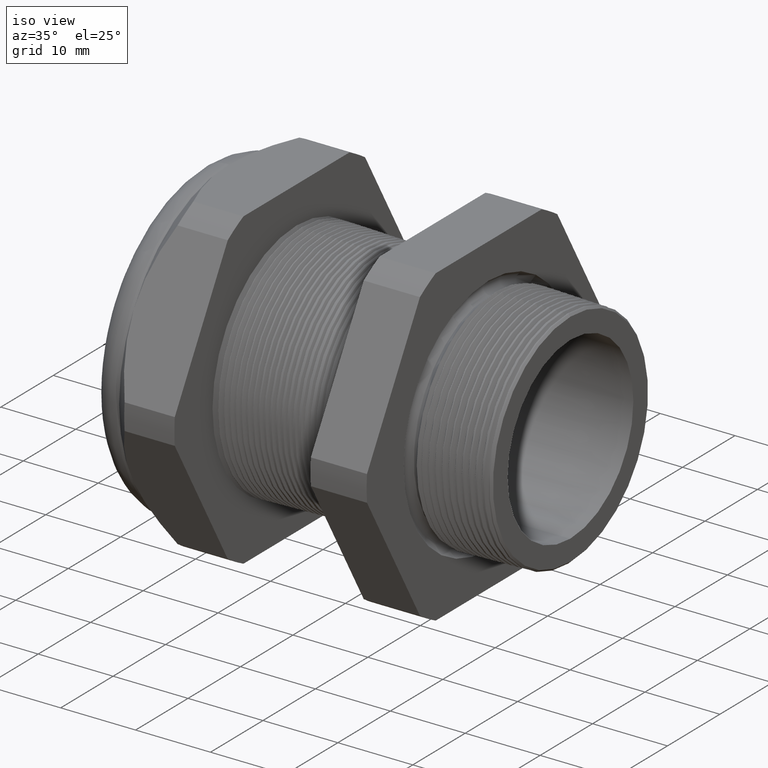
[diagram: clean part render]
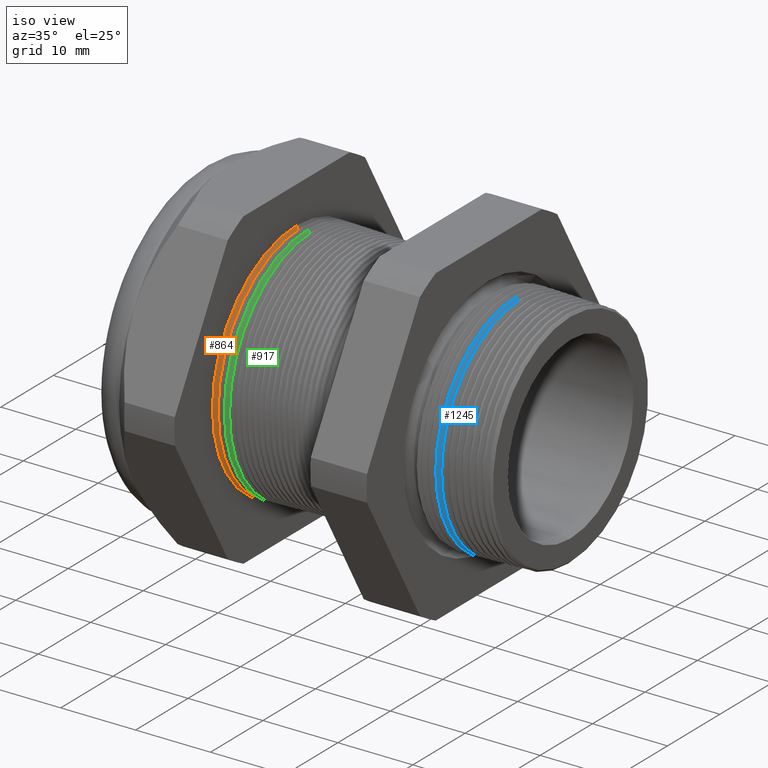
[diagram: same view with three faces highlighted in distinct colors, each labeled with its STEP entity id]
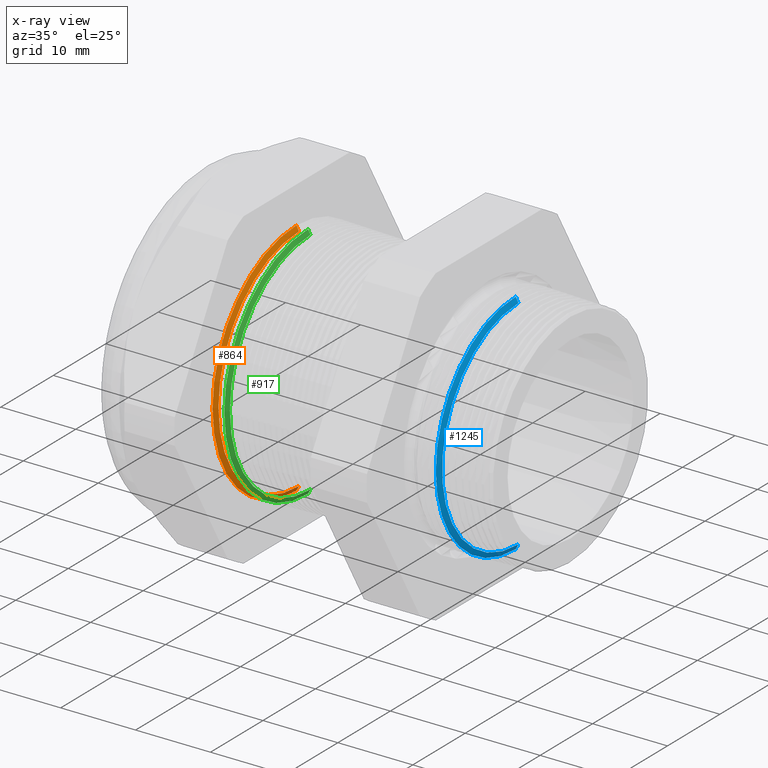
[diagram: x-ray of the same camera — body ghosted, the three highlighted faces saturated]
A machine part, iso view with three faces highlighted in distinct colors.
The next image is the same camera in x-ray (body ghosted, the three faces saturated) — at least one of them is partly hidden behind the body in this view.
Their STEP definitions:

[orange] entity #864 — the highlighted conical surface has half-angle 61.5 deg.
#779 = EDGE_CURVE ( 'NONE', #5304, #5310, #3283, .T. ) ;
#864 = ADVANCED_FACE ( 'NONE', ( #3389 ), #3388, .T. ) ;
#865 = EDGE_LOOP ( 'NONE', ( #866, #867, #869, #870 ) ) ;
#866 = ORIENTED_EDGE ( 'NONE', *, *, #5207, .F. ) ;
#867 = ORIENTED_EDGE ( 'NONE', *, *, #868, .F. ) ;
#868 = EDGE_CURVE ( 'NONE', #5238, #5017, #3387, .T. ) ;
#869 = ORIENTED_EDGE ( 'NONE', *, *, #5299, .T. ) ;
#870 = ORIENTED_EDGE ( 'NONE', *, *, #779, .T. ) ;
#3279 = DIRECTION ( 'NONE',  ( 0.0000000000000000000, 0.0000000000000000000, -1.000000000000000000 ) ) ;
#3280 = DIRECTION ( 'NONE',  ( 1.000000000000000000, 0.0000000000000000000, 0.0000000000000000000 ) ) ;
#3281 = CARTESIAN_POINT ( 'NONE',  ( -1.320314960629921200, 0.0000000000000000000, 0.0000000000000000000 ) ) ;
#3282 = AXIS2_PLACEMENT_3D ( 'NONE', #3281, #3280, #3279 ) ;
#3283 = CIRCLE ( 'NONE', #3282, 0.6300000000000000000 ) ;
#3379 = DIRECTION ( 'NONE',  ( 0.0000000000000000000, 0.0000000000000000000, -1.000000000000000000 ) ) ;
#3380 = DIRECTION ( 'NONE',  ( 1.000000000000000000, 0.0000000000000000000, 0.0000000000000000000 ) ) ;
#3381 = CARTESIAN_POINT ( 'NONE',  ( -1.306540573695817300, 0.0000000000000000000, 0.0000000000000000000 ) ) ;
#3382 = AXIS2_PLACEMENT_3D ( 'NONE', #3381, #3380, #3379 ) ;
#3383 = DIRECTION ( 'NONE',  ( 0.0000000000000000000, 0.0000000000000000000, 1.000000000000000000 ) ) ;
#3384 = DIRECTION ( 'NONE',  ( -1.000000000000000000, 0.0000000000000000000, 0.0000000000000000000 ) ) ;
#3385 = CARTESIAN_POINT ( 'NONE',  ( -1.320314960629921200, 0.0000000000000000000, 0.0000000000000000000 ) ) ;
#3386 = AXIS2_PLACEMENT_3D ( 'NONE', #3385, #3384, #3383 ) ;
#3387 = CIRCLE ( 'NONE', #3382, 0.6046307351718084300 ) ;
#3388 = CONICAL_SURFACE ( 'NONE', #3386, 0.6300000000000000000, 1.073377489976502500 ) ;
#3389 = FACE_OUTER_BOUND ( 'NONE', #865, .T. ) ;
#5017 = VERTEX_POINT ( 'NONE', #5736 ) ;
#5207 = EDGE_CURVE ( 'NONE', #5017, #5310, #6112, .T. ) ;
#5238 = VERTEX_POINT ( 'NONE', #6138 ) ;
#5299 = EDGE_CURVE ( 'NONE', #5238, #5304, #6270, .T. ) ;
#5304 = VERTEX_POINT ( 'NONE', #6319 ) ;
#5310 = VERTEX_POINT ( 'NONE', #6302 ) ;
#5736 = CARTESIAN_POINT ( 'NONE',  ( -1.306540573695817300, 7.559932889785493800E-017, -0.6046307351718084300 ) ) ;
#6109 = DIRECTION ( 'NONE',  ( -0.4771587602596173400, 1.076240564057388800E-016, -0.8788171126619606100 ) ) ;
#6110 = VECTOR ( 'NONE', #6109, 39.37007874015748900 ) ;
#6111 = CARTESIAN_POINT ( 'NONE',  ( -1.320314960629921200, 7.715274834628325400E-017, -0.6300000000000000000 ) ) ;
#6112 = LINE ( 'NONE', #6111, #6110 ) ;
#6138 = CARTESIAN_POINT ( 'NONE',  ( -1.306540573695817300, 0.0000000000000000000, 0.6046307351718084300 ) ) ;
#6267 = DIRECTION ( 'NONE',  ( -0.4771587602596173400, 0.0000000000000000000, 0.8788171126619606100 ) ) ;
#6268 = VECTOR ( 'NONE', #6267, 39.37007874015748900 ) ;
#6269 = CARTESIAN_POINT ( 'NONE',  ( -1.320314960629921200, 0.0000000000000000000, 0.6300000000000000000 ) ) ;
#6270 = LINE ( 'NONE', #6269, #6268 ) ;
#6302 = CARTESIAN_POINT ( 'NONE',  ( -1.320314960629921200, 7.715274834628325400E-017, -0.6300000000000000000 ) ) ;
#6319 = CARTESIAN_POINT ( 'NONE',  ( -1.320314960629921200, 0.0000000000000000000, 0.6300000000000000000 ) ) ;

[blue] entity #1245 — the highlighted conical surface has half-angle 61.5 deg.
#1223 = ORIENTED_EDGE ( 'NONE', *, *, #1224, .F. ) ;
#1224 = EDGE_CURVE ( 'NONE', #1591, #1654, #3876, .T. ) ;
#1225 = ORIENTED_EDGE ( 'NONE', *, *, #1640, .T. ) ;
#1226 = ORIENTED_EDGE ( 'NONE', *, *, #5224, .T. ) ;
#1245 = ADVANCED_FACE ( 'NONE', ( #3918 ), #3912, .T. ) ;
#1246 = EDGE_LOOP ( 'NONE', ( #1298, #1223, #1225, #1226 ) ) ;
#1298 = ORIENTED_EDGE ( 'NONE', *, *, #1649, .F. ) ;
#1591 = VERTEX_POINT ( 'NONE', #4514 ) ;
#1640 = EDGE_CURVE ( 'NONE', #1591, #1645, #4556, .T. ) ;
#1645 = VERTEX_POINT ( 'NONE', #4602 ) ;
#1647 = VERTEX_POINT ( 'NONE', #4601 ) ;
#1649 = EDGE_CURVE ( 'NONE', #1654, #1647, #4600, .T. ) ;
#1654 = VERTEX_POINT ( 'NONE', #4590 ) ;
#3872 = DIRECTION ( 'NONE',  ( 0.0000000000000000000, 0.0000000000000000000, -1.000000000000000000 ) ) ;
#3873 = DIRECTION ( 'NONE',  ( 1.000000000000000000, 0.0000000000000000000, 0.0000000000000000000 ) ) ;
#3874 = CARTESIAN_POINT ( 'NONE',  ( -0.1534707356790751300, 0.0000000000000000000, 0.0000000000000000000 ) ) ;
#3875 = AXIS2_PLACEMENT_3D ( 'NONE', #3874, #3873, #3872 ) ;
#3876 = CIRCLE ( 'NONE', #3875, 0.5731008538869458700 ) ;
#3907 = DIRECTION ( 'NONE',  ( 0.0000000000000000000, 0.0000000000000000000, 1.000000000000000000 ) ) ;
#3908 = DIRECTION ( 'NONE',  ( -1.000000000000000000, 0.0000000000000000000, 0.0000000000000000000 ) ) ;
#3909 = CARTESIAN_POINT ( 'NONE',  ( -0.1699999999999999600, 0.0000000000000000000, 0.0000000000000000000 ) ) ;
#3910 = AXIS2_PLACEMENT_3D ( 'NONE', #3909, #3908, #3907 ) ;
#3912 = CONICAL_SURFACE ( 'NONE', #3910, 0.6035439716807758900, 1.073377489976500100 ) ;
#3918 = FACE_OUTER_BOUND ( 'NONE', #1246, .T. ) ;
#4514 = CARTESIAN_POINT ( 'NONE',  ( -0.1534707356790751300, 0.0000000000000000000, 0.5731008538869458700 ) ) ;
#4553 = DIRECTION ( 'NONE',  ( -0.4771587602596195100, 0.0000000000000000000, 0.8788171126619593900 ) ) ;
#4554 = VECTOR ( 'NONE', #4553, 39.37007874015748100 ) ;
#4555 = CARTESIAN_POINT ( 'NONE',  ( -0.1699999999999999600, 0.0000000000000000000, 0.6035439716807758900 ) ) ;
#4556 = LINE ( 'NONE', #4555, #4554 ) ;
#4590 = CARTESIAN_POINT ( 'NONE',  ( -0.1534707356790751300, 7.182099879686942500E-017, -0.5731008538869458700 ) ) ;
#4597 = DIRECTION ( 'NONE',  ( -0.4771587602596195100, 1.076240564057387400E-016, -0.8788171126619593900 ) ) ;
#4598 = VECTOR ( 'NONE', #4597, 39.37007874015748100 ) ;
#4599 = CARTESIAN_POINT ( 'NONE',  ( -0.1699999999999999600, 7.391281930635429700E-017, -0.6035439716807758900 ) ) ;
#4600 = LINE ( 'NONE', #4599, #4598 ) ;
#4601 = CARTESIAN_POINT ( 'NONE',  ( -0.1679808000774190600, 7.346387619532075400E-017, -0.5998250680502854600 ) ) ;
#4602 = CARTESIAN_POINT ( 'NONE',  ( -0.1679808000774190600, 0.0000000000000000000, 0.5998250680502854600 ) ) ;
#5224 = EDGE_CURVE ( 'NONE', #1645, #1647, #6150, .T. ) ;
#6146 = DIRECTION ( 'NONE',  ( 0.0000000000000000000, 0.0000000000000000000, 1.000000000000000000 ) ) ;
#6147 = DIRECTION ( 'NONE',  ( 1.000000000000000000, 0.0000000000000000000, 0.0000000000000000000 ) ) ;
#6148 = CARTESIAN_POINT ( 'NONE',  ( -0.1679808000774190600, 0.0000000000000000000, 0.0000000000000000000 ) ) ;
#6149 = AXIS2_PLACEMENT_3D ( 'NONE', #6148, #6147, #6146 ) ;
#6150 = CIRCLE ( 'NONE', #6149, 0.5998250680502854600 ) ;

[green] entity #917 — the highlighted conical surface has half-angle 61.5 deg.
#302 = EDGE_CURVE ( 'NONE', #442, #446, #2344, .T. ) ;
#422 = VERTEX_POINT ( 'NONE', #2547 ) ;
#424 = VERTEX_POINT ( 'NONE', #2603 ) ;
#440 = EDGE_CURVE ( 'NONE', #424, #442, #2586, .T. ) ;
#442 = VERTEX_POINT ( 'NONE', #2582 ) ;
#445 = EDGE_CURVE ( 'NONE', #422, #446, #2576, .T. ) ;
#446 = VERTEX_POINT ( 'NONE', #2634 ) ;
#899 = ORIENTED_EDGE ( 'NONE', *, *, #302, .T. ) ;
#917 = ADVANCED_FACE ( 'NONE', ( #3446 ), #3441, .T. ) ;
#918 = EDGE_LOOP ( 'NONE', ( #919, #920, #922, #899 ) ) ;
#919 = ORIENTED_EDGE ( 'NONE', *, *, #445, .F. ) ;
#920 = ORIENTED_EDGE ( 'NONE', *, *, #921, .F. ) ;
#921 = EDGE_CURVE ( 'NONE', #424, #422, #3434, .T. ) ;
#922 = ORIENTED_EDGE ( 'NONE', *, *, #440, .T. ) ;
#2340 = DIRECTION ( 'NONE',  ( 0.0000000000000000000, 0.0000000000000000000, 1.000000000000000000 ) ) ;
#2341 = DIRECTION ( 'NONE',  ( 1.000000000000000000, 0.0000000000000000000, 0.0000000000000000000 ) ) ;
#2342 = CARTESIAN_POINT ( 'NONE',  ( -1.259449589234529400, 0.0000000000000000000, 0.0000000000000000000 ) ) ;
#2343 = AXIS2_PLACEMENT_3D ( 'NONE', #2342, #2341, #2340 ) ;
#2344 = CIRCLE ( 'NONE', #2343, 0.6284061841583611400 ) ;
#2547 = CARTESIAN_POINT ( 'NONE',  ( -1.246540573695817300, 7.550173582441025900E-017, -0.6046307351718084300 ) ) ;
#2574 = DIRECTION ( 'NONE',  ( -0.4771587602596173400, 1.076240564057388800E-016, -0.8788171126619606100 ) ) ;
#2575 = CARTESIAN_POINT ( 'NONE',  ( -1.260314960629921300, 7.715274834628325400E-017, -0.6300000000000000000 ) ) ;
#2576 = LINE ( 'NONE', #2575, #2635 ) ;
#2582 = CARTESIAN_POINT ( 'NONE',  ( -1.259449589234529400, 0.0000000000000000000, 0.6284061841583611400 ) ) ;
#2583 = DIRECTION ( 'NONE',  ( -0.4771587602596173400, 0.0000000000000000000, 0.8788171126619606100 ) ) ;
#2584 = VECTOR ( 'NONE', #2583, 39.37007874015748900 ) ;
#2585 = CARTESIAN_POINT ( 'NONE',  ( -1.260314960629921300, 0.0000000000000000000, 0.6300000000000000000 ) ) ;
#2586 = LINE ( 'NONE', #2585, #2584 ) ;
#2603 = CARTESIAN_POINT ( 'NONE',  ( -1.246540573695817300, 0.0000000000000000000, 0.6046307351718084300 ) ) ;
#2634 = CARTESIAN_POINT ( 'NONE',  ( -1.259449589234529400, 7.696154117895324300E-017, -0.6284061841583611400 ) ) ;
#2635 = VECTOR ( 'NONE', #2574, 39.37007874015748900 ) ;
#3431 = DIRECTION ( 'NONE',  ( 0.0000000000000000000, 0.0000000000000000000, -1.000000000000000000 ) ) ;
#3432 = DIRECTION ( 'NONE',  ( 1.000000000000000000, 0.0000000000000000000, 0.0000000000000000000 ) ) ;
#3433 = AXIS2_PLACEMENT_3D ( 'NONE', #3440, #3432, #3431 ) ;
#3434 = CIRCLE ( 'NONE', #3433, 0.6046307351718084300 ) ;
#3436 = DIRECTION ( 'NONE',  ( 0.0000000000000000000, 0.0000000000000000000, 1.000000000000000000 ) ) ;
#3437 = DIRECTION ( 'NONE',  ( -1.000000000000000000, 0.0000000000000000000, 0.0000000000000000000 ) ) ;
#3438 = CARTESIAN_POINT ( 'NONE',  ( -1.260314960629921300, 0.0000000000000000000, 0.0000000000000000000 ) ) ;
#3439 = AXIS2_PLACEMENT_3D ( 'NONE', #3438, #3437, #3436 ) ;
#3440 = CARTESIAN_POINT ( 'NONE',  ( -1.246540573695817300, 0.0000000000000000000, 0.0000000000000000000 ) ) ;
#3441 = CONICAL_SURFACE ( 'NONE', #3439, 0.6300000000000000000, 1.073377489976502500 ) ;
#3446 = FACE_OUTER_BOUND ( 'NONE', #918, .T. ) ;